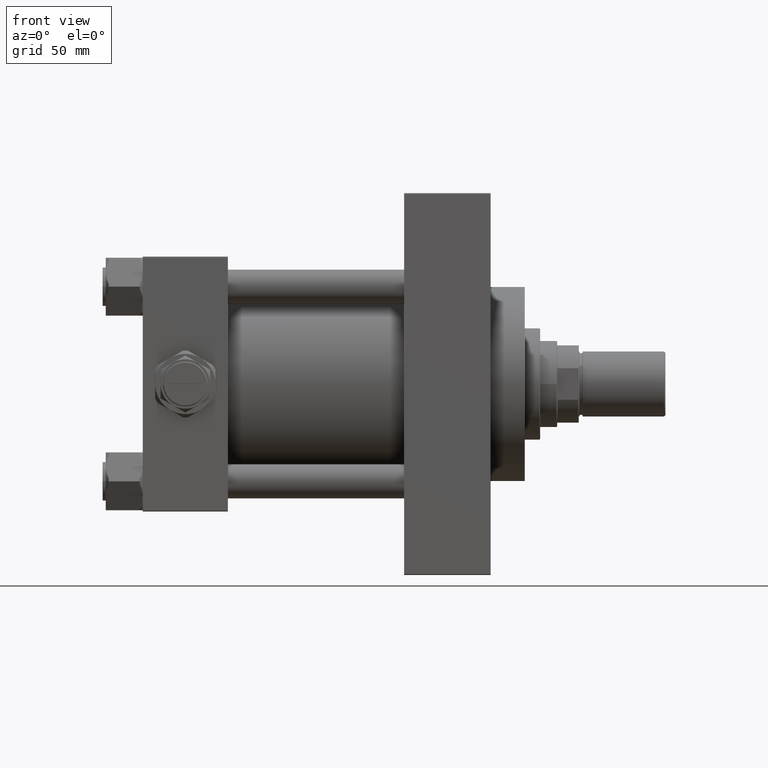
[diagram: clean part render]
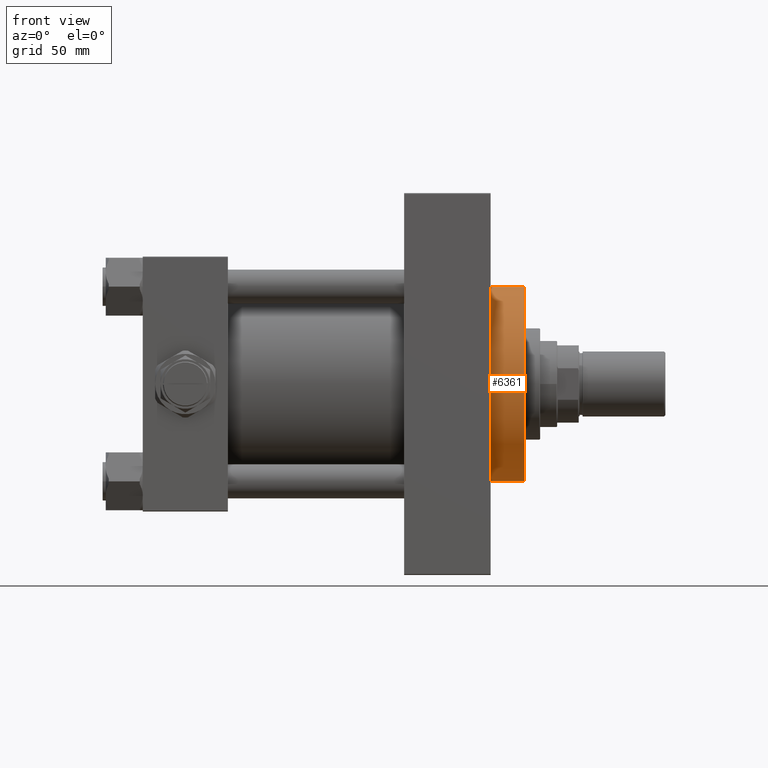
[diagram: same view with one face highlighted and labeled with its STEP entity id]
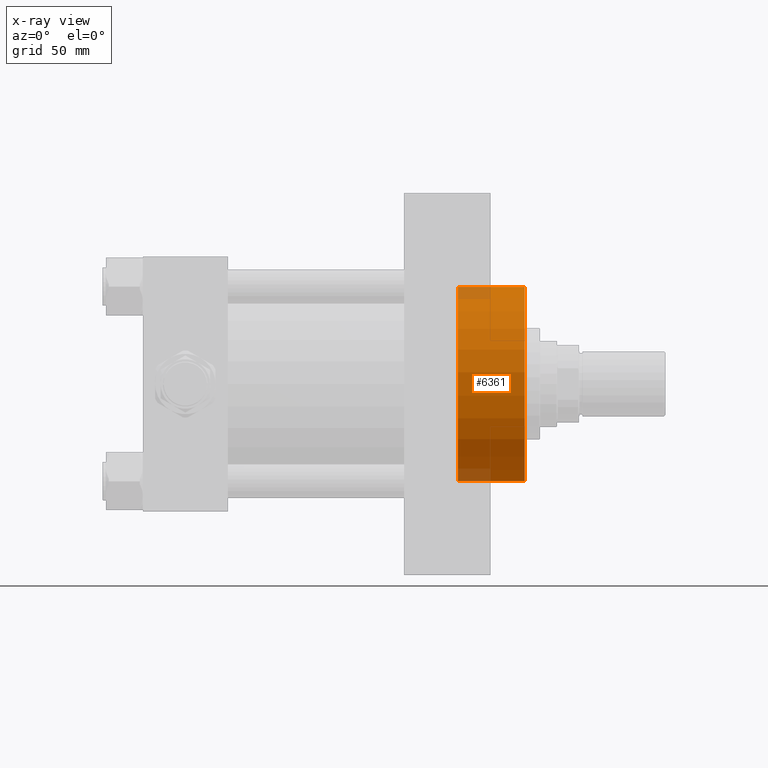
[diagram: x-ray of the same camera — body ghosted, the highlighted face saturated]
A machine part, front view. The second image highlights one B-rep face of the part: STEP entity #6361.
The next image is the same camera in x-ray: the body ghosted, the highlighted face saturated — about 6% of this face is hidden behind the body in this view.
In plain terms, the highlighted cylindrical surface (partial cylindrical patch) has radius 62.75 mm, axis along (-1, 0, 0).
Its self-contained STEP definition (entity closure, byte-faithful):
#1089 = CARTESIAN_POINT ( 'NONE',  ( 62.75000000000000000, 7.684658664649641591E-15, 0.000000000000000000 ) ) ;
#1861 = EDGE_CURVE ( 'NONE', #3063, #11224, #40975, .T. ) ;
#2425 = ORIENTED_EDGE ( 'NONE', *, *, #1861, .T. ) ;
#2756 = EDGE_CURVE ( 'NONE', #3063, #23935, #39687, .T. ) ;
#2940 = VERTEX_POINT ( 'NONE', #41174 ) ;
#3063 = VERTEX_POINT ( 'NONE', #19174 ) ;
#5138 = AXIS2_PLACEMENT_3D ( 'NONE', #19383, #30511, #42623 ) ;
#5872 = CARTESIAN_POINT ( 'NONE',  ( 62.75000000000000000, 7.684658664649641591E-15, 43.25999999999999801 ) ) ;
#6361 = ADVANCED_FACE ( 'NONE', ( #15090 ), #35036, .T. ) ;
#7372 = DIRECTION ( 'NONE',  ( 1.000000000000000000, 0.000000000000000000, 0.000000000000000000 ) ) ;
#7613 = CARTESIAN_POINT ( 'NONE',  ( 0.000000000000000000, 0.000000000000000000, 43.25999999999999801 ) ) ;
#11224 = VERTEX_POINT ( 'NONE', #1089 ) ;
#12065 = CARTESIAN_POINT ( 'NONE',  ( 0.000000000000000000, 0.000000000000000000, 0.000000000000000000 ) ) ;
#12718 = CARTESIAN_POINT ( 'NONE',  ( -62.75000000000000000, 0.000000000000000000, 43.25999999999999801 ) ) ;
#15090 = FACE_OUTER_BOUND ( 'NONE', #38644, .T. ) ;
#15447 = VECTOR ( 'NONE', #32907, 1000.000000000000000 ) ;
#16477 = ORIENTED_EDGE ( 'NONE', *, *, #26194, .F. ) ;
#19174 = CARTESIAN_POINT ( 'NONE',  ( 62.75000000000000000, 7.684658664649641591E-15, 43.25999999999999801 ) ) ;
#19383 = CARTESIAN_POINT ( 'NONE',  ( 0.000000000000000000, 0.000000000000000000, 43.25999999999999801 ) ) ;
#21117 = AXIS2_PLACEMENT_3D ( 'NONE', #7613, #34649, #7372 ) ;
#23935 = VERTEX_POINT ( 'NONE', #44615 ) ;
#26194 = EDGE_CURVE ( 'NONE', #23935, #2940, #39761, .T. ) ;
#26503 = DIRECTION ( 'NONE',  ( 0.000000000000000000, 0.000000000000000000, 1.000000000000000000 ) ) ;
#30511 = DIRECTION ( 'NONE',  ( -0.000000000000000000, -0.000000000000000000, -1.000000000000000000 ) ) ;
#32907 = DIRECTION ( 'NONE',  ( -0.000000000000000000, -0.000000000000000000, -1.000000000000000000 ) ) ;
#34649 = DIRECTION ( 'NONE',  ( 0.000000000000000000, 0.000000000000000000, 1.000000000000000000 ) ) ;
#35036 = CYLINDRICAL_SURFACE ( 'NONE', #5138, 62.75000000000000000 ) ;
#36552 = VECTOR ( 'NONE', #48358, 1000.000000000000000 ) ;
#38644 = EDGE_LOOP ( 'NONE', ( #40334, #2425, #40376, #16477 ) ) ;
#39687 = CIRCLE ( 'NONE', #21117, 62.75000000000000000 ) ;
#39761 = LINE ( 'NONE', #12718, #36552 ) ;
#40334 = ORIENTED_EDGE ( 'NONE', *, *, #2756, .F. ) ;
#40376 = ORIENTED_EDGE ( 'NONE', *, *, #46794, .T. ) ;
#40975 = LINE ( 'NONE', #5872, #15447 ) ;
#41174 = CARTESIAN_POINT ( 'NONE',  ( -62.75000000000000000, 0.000000000000000000, 0.000000000000000000 ) ) ;
#41907 = CIRCLE ( 'NONE', #48378, 62.75000000000000000 ) ;
#42623 = DIRECTION ( 'NONE',  ( -1.000000000000000000, 0.000000000000000000, 0.000000000000000000 ) ) ;
#44615 = CARTESIAN_POINT ( 'NONE',  ( -62.75000000000000000, 0.000000000000000000, 43.25999999999999801 ) ) ;
#46794 = EDGE_CURVE ( 'NONE', #11224, #2940, #41907, .T. ) ;
#48358 = DIRECTION ( 'NONE',  ( -0.000000000000000000, -0.000000000000000000, -1.000000000000000000 ) ) ;
#48378 = AXIS2_PLACEMENT_3D ( 'NONE', #12065, #26503, #49485 ) ;
#49485 = DIRECTION ( 'NONE',  ( 1.000000000000000000, 0.000000000000000000, 0.000000000000000000 ) ) ;